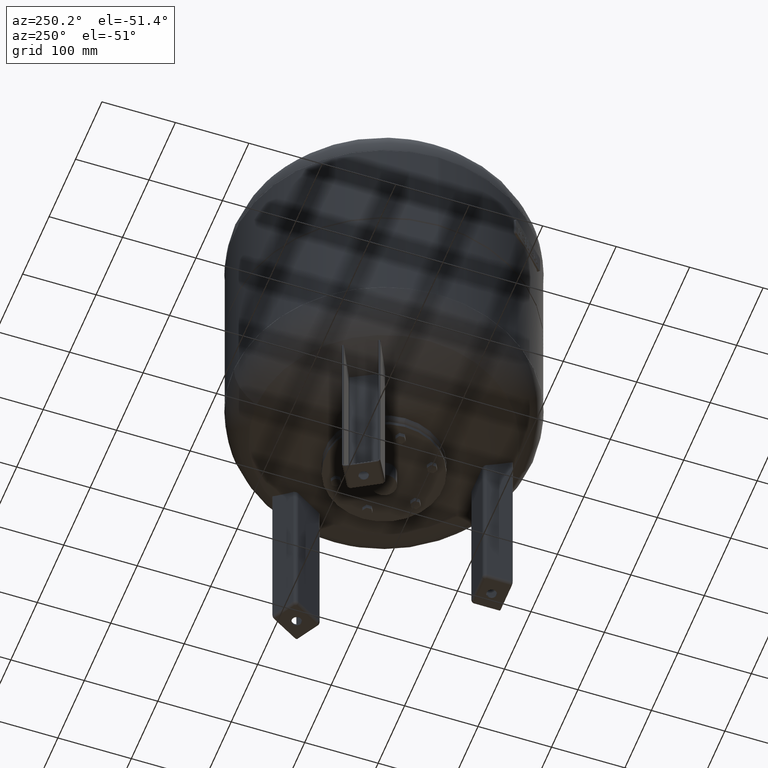
[diagram: clean part render]
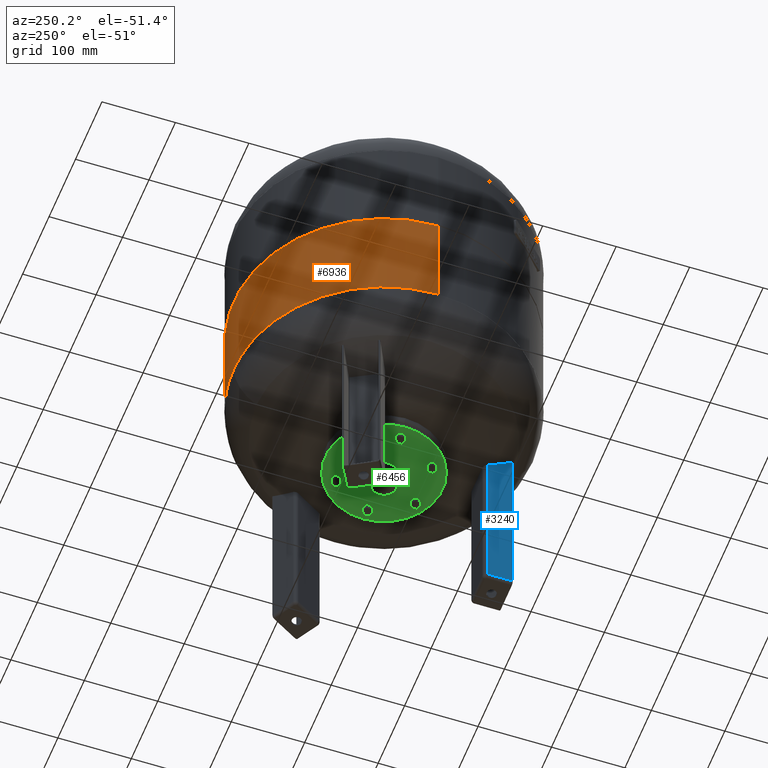
[diagram: same view with three faces highlighted in distinct colors, each labeled with its STEP entity id]
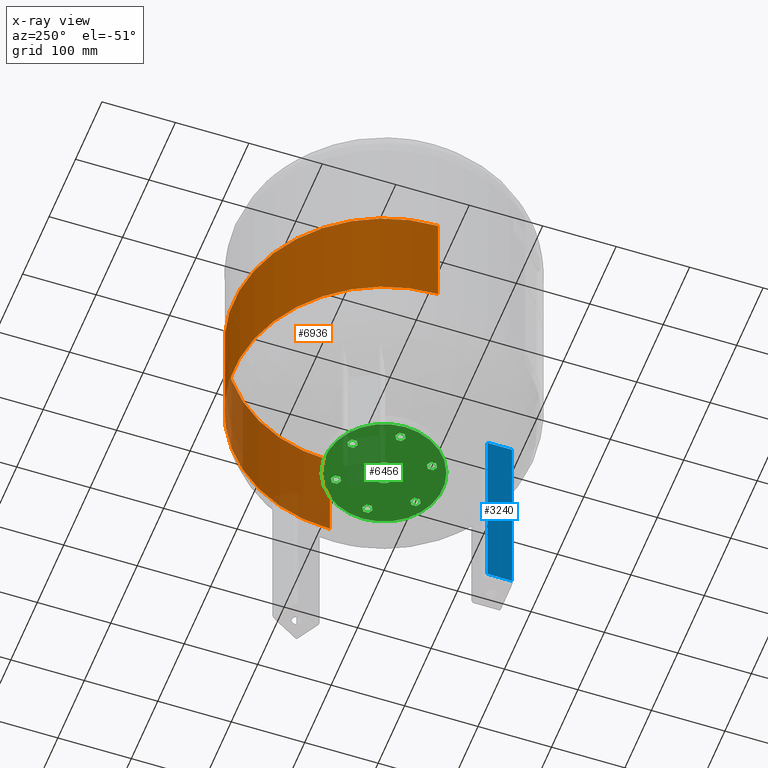
[diagram: x-ray of the same camera — body ghosted, the three highlighted faces saturated]
A machine part, auxiliary view with three faces highlighted in distinct colors.
The next image is the same camera in x-ray (body ghosted, the three faces saturated) — at least one of them is partly hidden behind the body in this view.
Their STEP definitions:

[orange] entity #6936 — the highlighted cylindrical surface (partial cylindrical patch) has radius 204.5 mm, axis along (-0, 0, -1).
#6736=CARTESIAN_POINT('',(-204.500000000000030,-1.647150E-014,312.000000000000060));
#6737=VERTEX_POINT('',#6736);
#6738=CARTESIAN_POINT('',(-204.500000000000000,-2.504403E-014,452.000000000000060));
#6739=VERTEX_POINT('',#6738);
#6740=CARTESIAN_POINT('',(-204.500000000000030,-1.647150E-014,312.000000000000060));
#6741=DIRECTION('',(0.0,0.0,1.0));
#6742=VECTOR('',#6741,140.0);
#6743=LINE('',#6740,#6742);
#6744=EDGE_CURVE('',#6737,#6739,#6743,.T.);
#6746=CARTESIAN_POINT('',(204.500000000000030,8.573355E-015,312.0));
#6747=VERTEX_POINT('',#6746);
#6755=CARTESIAN_POINT('',(204.500000000000030,8.271069E-019,452.0));
#6756=VERTEX_POINT('',#6755);
#6757=CARTESIAN_POINT('',(204.500000000000030,8.573355E-015,312.0));
#6758=DIRECTION('',(0.0,0.0,1.0));
#6759=VECTOR('',#6758,140.0);
#6760=LINE('',#6757,#6759);
#6761=EDGE_CURVE('',#6747,#6756,#6760,.T.);
#6904=CARTESIAN_POINT('',(5.916457E-030,-3.263115E-030,452.000000000000060));
#6905=DIRECTION('',(0.0,0.0,-1.0));
#6906=DIRECTION('',(-1.0,0.0,0.0));
#6907=AXIS2_PLACEMENT_3D('',#6904,#6905,#6906);
#6908=CIRCLE('',#6907,204.500000000000000);
#6909=EDGE_CURVE('',#6739,#6756,#6908,.T.);
#6919=CARTESIAN_POINT('',(-8.572528E-015,4.286264E-015,382.0));
#6920=DIRECTION('',(-1.224647E-016,6.123234E-017,-1.0));
#6921=DIRECTION('',(-1.0,0.0,0.0));
#6922=AXIS2_PLACEMENT_3D('',#6919,#6920,#6921);
#6923=CYLINDRICAL_SURFACE('',#6922,204.500000000000030);
#6924=ORIENTED_EDGE('',*,*,#6744,.T.);
#6925=ORIENTED_EDGE('',*,*,#6909,.T.);
#6926=ORIENTED_EDGE('',*,*,#6761,.F.);
#6927=CARTESIAN_POINT('',(-1.714506E-014,8.572528E-015,312.0));
#6928=DIRECTION('',(0.0,0.0,-1.0));
#6929=DIRECTION('',(-1.0,0.0,0.0));
#6930=AXIS2_PLACEMENT_3D('',#6927,#6928,#6929);
#6931=CIRCLE('',#6930,204.500000000000030);
#6932=EDGE_CURVE('',#6737,#6747,#6931,.T.);
#6933=ORIENTED_EDGE('',*,*,#6932,.F.);
#6934=EDGE_LOOP('',(#6924,#6925,#6926,#6933));
#6935=FACE_OUTER_BOUND('',#6934,.T.);
#6936=ADVANCED_FACE('',(#6935),#6923,.T.);

[blue] entity #3240 — the highlighted planar face has unit normal (-1, 0, 0).
#2448=CARTESIAN_POINT('',(-25.000000000000004,-131.500000000000000,274.0));
#2449=VERTEX_POINT('',#2448);
#2457=CARTESIAN_POINT('',(-25.000000000000004,-165.500000000000000,274.0));
#2458=VERTEX_POINT('',#2457);
#2459=CARTESIAN_POINT('',(-25.000000000000004,-165.500000000000000,274.0));
#2460=DIRECTION('',(0.0,1.0,0.0));
#2461=VECTOR('',#2460,34.0);
#2462=LINE('',#2459,#2461);
#2463=EDGE_CURVE('',#2458,#2449,#2462,.T.);
#2768=CARTESIAN_POINT('',(-25.000000000000004,-165.500000000000000,4.999999999999996));
#2769=VERTEX_POINT('',#2768);
#2770=CARTESIAN_POINT('',(-25.000000000000004,-165.500000000000000,4.999999999999996));
#2771=DIRECTION('',(0.0,0.0,1.0));
#2772=VECTOR('',#2771,269.0);
#2773=LINE('',#2770,#2772);
#2774=EDGE_CURVE('',#2769,#2458,#2773,.T.);
#3115=CARTESIAN_POINT('',(-25.0,-131.500000000000000,4.999999999999996));
#3116=VERTEX_POINT('',#3115);
#3117=CARTESIAN_POINT('',(-25.000000000000004,-165.500000000000000,4.999999999999996));
#3118=DIRECTION('',(0.0,1.0,0.0));
#3119=VECTOR('',#3118,34.0);
#3120=LINE('',#3117,#3119);
#3121=EDGE_CURVE('',#2769,#3116,#3120,.T.);
#3218=CARTESIAN_POINT('',(-25.0,-131.500000000000000,4.999999999999996));
#3219=DIRECTION('',(0.0,0.0,1.0));
#3220=VECTOR('',#3219,269.0);
#3221=LINE('',#3218,#3220);
#3222=EDGE_CURVE('',#3116,#2449,#3221,.T.);
#3229=CARTESIAN_POINT('',(-25.0,-166.500000000000000,-4.592425E-015));
#3230=DIRECTION('',(-1.0,0.0,0.0));
#3231=DIRECTION('',(0.0,-1.0,0.0));
#3232=AXIS2_PLACEMENT_3D('',#3229,#3230,#3231);
#3233=PLANE('',#3232);
#3234=ORIENTED_EDGE('',*,*,#2774,.T.);
#3235=ORIENTED_EDGE('',*,*,#2463,.T.);
#3236=ORIENTED_EDGE('',*,*,#3222,.F.);
#3237=ORIENTED_EDGE('',*,*,#3121,.F.);
#3238=EDGE_LOOP('',(#3234,#3235,#3236,#3237));
#3239=FACE_OUTER_BOUND('',#3238,.T.);
#3240=ADVANCED_FACE('',(#3239),#3233,.T.);

[green] entity #6456 — the highlighted planar face has unit normal (0, 0, 1).
#3382=CARTESIAN_POINT('',(-80.0,3.061617E-015,186.0));
#3383=VERTEX_POINT('',#3382);
#3392=CARTESIAN_POINT('',(80.0,-6.735557E-015,186.0));
#3393=VERTEX_POINT('',#3392);
#3394=CARTESIAN_POINT('',(0.0,3.061617E-015,186.0));
#3395=DIRECTION('',(0.0,0.0,1.0));
#3396=DIRECTION('',(-1.0,0.0,0.0));
#3397=AXIS2_PLACEMENT_3D('',#3394,#3395,#3396);
#3398=CIRCLE('',#3397,80.0);
#3399=EDGE_CURVE('',#3383,#3393,#3398,.T.);
#3426=CARTESIAN_POINT('',(-16.850000000000005,3.061617E-015,186.0));
#3427=VERTEX_POINT('',#3426);
#3443=CARTESIAN_POINT('',(16.850000000000005,9.980871E-016,186.0));
#3444=VERTEX_POINT('',#3443);
#3451=CARTESIAN_POINT('',(0.0,3.061617E-015,186.0));
#3452=DIRECTION('',(0.0,0.0,1.0));
#3453=DIRECTION('',(-1.0,0.0,0.0));
#3454=AXIS2_PLACEMENT_3D('',#3451,#3452,#3453);
#3455=CIRCLE('',#3454,16.850000000000005);
#3456=EDGE_CURVE('',#3427,#3444,#3455,.T.);
#4930=CARTESIAN_POINT('',(-25.249999999999932,-50.662486121389655,186.0));
#4931=VERTEX_POINT('',#4930);
#4932=CARTESIAN_POINT('',(-31.249999999999957,-47.198384506251891,186.0));
#4933=VERTEX_POINT('',#4932);
#4934=CARTESIAN_POINT('',(-25.249999999999932,-50.662486121389655,186.0));
#4935=DIRECTION('',(-0.866025403784439,0.500000000000000,0.0));
#4936=VECTOR('',#4935,6.928203230275535);
#4937=LINE('',#4934,#4936);
#4938=EDGE_CURVE('',#4931,#4933,#4937,.T.);
#4970=CARTESIAN_POINT('',(-25.249999999999932,-57.590689351665176,186.0));
#4971=VERTEX_POINT('',#4970);
#4972=CARTESIAN_POINT('',(-25.249999999999932,-57.590689351665176,186.0));
#4973=DIRECTION('',(0.0,1.0,0.0));
#4974=VECTOR('',#4973,6.928203230275521);
#4975=LINE('',#4972,#4974);
#4976=EDGE_CURVE('',#4971,#4931,#4975,.T.);
#5001=CARTESIAN_POINT('',(-31.249999999999957,-61.054790966802940,186.0));
#5002=VERTEX_POINT('',#5001);
#5003=CARTESIAN_POINT('',(-31.249999999999957,-61.054790966802940,186.0));
#5004=DIRECTION('',(0.866025403784439,0.500000000000000,0.0));
#5005=VECTOR('',#5004,6.928203230275535);
#5006=LINE('',#5003,#5005);
#5007=EDGE_CURVE('',#5002,#4971,#5006,.T.);
#5032=CARTESIAN_POINT('',(-37.249999999999950,-57.590689351665198,186.0));
#5033=VERTEX_POINT('',#5032);
#5034=CARTESIAN_POINT('',(-37.249999999999950,-57.590689351665198,186.0));
#5035=DIRECTION('',(0.866025403784439,-0.499999999999999,0.0));
#5036=VECTOR('',#5035,6.928203230275497);
#5037=LINE('',#5034,#5036);
#5038=EDGE_CURVE('',#5033,#5002,#5037,.T.);
#5063=CARTESIAN_POINT('',(-37.249999999999979,-50.662486121389669,186.0));
#5064=VERTEX_POINT('',#5063);
#5065=CARTESIAN_POINT('',(-31.249999999999957,-47.198384506251891,186.0));
#5066=DIRECTION('',(-0.866025403784438,-0.500000000000001,0.0));
#5067=VECTOR('',#5066,6.928203230275540);
#5068=LINE('',#5065,#5067);
#5069=EDGE_CURVE('',#4933,#5064,#5068,.T.);
#5094=CARTESIAN_POINT('',(-37.249999999999979,-50.662486121389669,186.0));
#5095=DIRECTION('',(0.0,-1.0,0.0));
#5096=VECTOR('',#5095,6.928203230275528);
#5097=LINE('',#5094,#5096);
#5098=EDGE_CURVE('',#5064,#5033,#5097,.T.);
#5158=CARTESIAN_POINT('',(31.250000000000014,-47.198384506251855,186.0));
#5159=VERTEX_POINT('',#5158);
#5160=CARTESIAN_POINT('',(25.250000000000004,-50.662486121389620,186.0));
#5161=VERTEX_POINT('',#5160);
#5162=CARTESIAN_POINT('',(31.250000000000014,-47.198384506251855,186.0));
#5163=DIRECTION('',(-0.866025403784438,-0.500000000000000,0.0));
#5164=VECTOR('',#5163,6.928203230275523);
#5165=LINE('',#5162,#5164);
#5166=EDGE_CURVE('',#5159,#5161,#5165,.T.);
#5198=CARTESIAN_POINT('',(37.250000000000028,-50.662486121389620,186.0));
#5199=VERTEX_POINT('',#5198);
#5200=CARTESIAN_POINT('',(37.250000000000028,-50.662486121389620,186.0));
#5201=DIRECTION('',(-0.866025403784438,0.500000000000000,0.0));
#5202=VECTOR('',#5201,6.928203230275527);
#5203=LINE('',#5200,#5202);
#5204=EDGE_CURVE('',#5199,#5159,#5203,.T.);
#5229=CARTESIAN_POINT('',(37.250000000000028,-57.590689351665141,186.0));
#5230=VERTEX_POINT('',#5229);
#5231=CARTESIAN_POINT('',(37.250000000000028,-57.590689351665141,186.0));
#5232=DIRECTION('',(0.0,1.0,0.0));
#5233=VECTOR('',#5232,6.928203230275521);
#5234=LINE('',#5231,#5233);
#5235=EDGE_CURVE('',#5230,#5199,#5234,.T.);
#5260=CARTESIAN_POINT('',(31.250000000000032,-61.054790966802905,186.0));
#5261=VERTEX_POINT('',#5260);
#5262=CARTESIAN_POINT('',(31.250000000000032,-61.054790966802905,186.0));
#5263=DIRECTION('',(0.866025403784438,0.500000000000001,0.0));
#5264=VECTOR('',#5263,6.928203230275511);
#5265=LINE('',#5262,#5264);
#5266=EDGE_CURVE('',#5261,#5230,#5265,.T.);
#5291=CARTESIAN_POINT('',(25.250000000000007,-57.590689351665141,186.0));
#5292=VERTEX_POINT('',#5291);
#5293=CARTESIAN_POINT('',(25.250000000000004,-50.662486121389620,186.0));
#5294=DIRECTION('',(0.0,-1.0,0.0));
#5295=VECTOR('',#5294,6.928203230275521);
#5296=LINE('',#5293,#5295);
#5297=EDGE_CURVE('',#5161,#5292,#5296,.T.);
#5322=CARTESIAN_POINT('',(25.250000000000007,-57.590689351665141,186.0));
#5323=DIRECTION('',(0.866025403784439,-0.500000000000000,0.0));
#5324=VECTOR('',#5323,6.928203230275535);
#5325=LINE('',#5322,#5324);
#5326=EDGE_CURVE('',#5292,#5261,#5325,.T.);
#5386=CARTESIAN_POINT('',(56.499999999999972,3.464101615137770,186.0));
#5387=VERTEX_POINT('',#5386);
#5388=CARTESIAN_POINT('',(56.499999999999979,-3.464101615137750,186.0));
#5389=VERTEX_POINT('',#5388);
#5390=CARTESIAN_POINT('',(56.499999999999972,3.464101615137770,186.0));
#5391=DIRECTION('',(0.0,-1.0,0.0));
#5392=VECTOR('',#5391,6.928203230275520);
#5393=LINE('',#5390,#5392);
#5394=EDGE_CURVE('',#5387,#5389,#5393,.T.);
#5426=CARTESIAN_POINT('',(62.499999999999993,6.928203230275536,186.0));
#5427=VERTEX_POINT('',#5426);
#5428=CARTESIAN_POINT('',(62.499999999999993,6.928203230275536,186.0));
#5429=DIRECTION('',(-0.866025403784439,-0.500000000000000,0.0));
#5430=VECTOR('',#5429,6.928203230275534);
#5431=LINE('',#5428,#5430);
#5432=EDGE_CURVE('',#5427,#5387,#5431,.T.);
#5457=CARTESIAN_POINT('',(68.500000000000000,3.464101615137766,186.0));
#5458=VERTEX_POINT('',#5457);
#5459=CARTESIAN_POINT('',(68.500000000000000,3.464101615137766,186.0));
#5460=DIRECTION('',(-0.866025403784438,0.500000000000001,0.0));
#5461=VECTOR('',#5460,6.928203230275524);
#5462=LINE('',#5459,#5461);
#5463=EDGE_CURVE('',#5458,#5427,#5462,.T.);
#5488=CARTESIAN_POINT('',(68.500000000000000,-3.464101615137742,186.0));
#5489=VERTEX_POINT('',#5488);
#5490=CARTESIAN_POINT('',(68.500000000000000,-3.464101615137742,186.0));
#5491=DIRECTION('',(0.0,1.0,0.0));
#5492=VECTOR('',#5491,6.928203230275507);
#5493=LINE('',#5490,#5492);
#5494=EDGE_CURVE('',#5489,#5458,#5493,.T.);
#5519=CARTESIAN_POINT('',(62.499999999999993,-6.928203230275513,186.0));
#5520=VERTEX_POINT('',#5519);
#5521=CARTESIAN_POINT('',(56.499999999999979,-3.464101615137750,186.0));
#5522=DIRECTION('',(0.866025403784439,-0.500000000000000,0.0));
#5523=VECTOR('',#5522,6.928203230275526);
#5524=LINE('',#5521,#5523);
#5525=EDGE_CURVE('',#5389,#5520,#5524,.T.);
#5550=CARTESIAN_POINT('',(62.499999999999993,-6.928203230275513,186.0));
#5551=DIRECTION('',(0.866025403784438,0.500000000000001,0.0));
#5552=VECTOR('',#5551,6.928203230275524);
#5553=LINE('',#5550,#5552);
#5554=EDGE_CURVE('',#5520,#5489,#5553,.T.);
#5638=CARTESIAN_POINT('',(25.249999999999968,50.662486121389648,186.0));
#5639=VERTEX_POINT('',#5638);
#5640=CARTESIAN_POINT('',(31.249999999999993,47.198384506251891,186.0));
#5641=VERTEX_POINT('',#5640);
#5642=CARTESIAN_POINT('',(25.249999999999968,50.662486121389648,186.0));
#5643=DIRECTION('',(0.866025403784439,-0.499999999999999,0.0));
#5644=VECTOR('',#5643,6.928203230275532);
#5645=LINE('',#5642,#5644);
#5646=EDGE_CURVE('',#5639,#5641,#5645,.T.);
#5678=CARTESIAN_POINT('',(25.249999999999964,57.590689351665183,186.0));
#5679=VERTEX_POINT('',#5678);
#5680=CARTESIAN_POINT('',(25.249999999999964,57.590689351665183,186.0));
#5681=DIRECTION('',(0.0,-1.0,0.0));
#5682=VECTOR('',#5681,6.928203230275535);
#5683=LINE('',#5680,#5682);
#5684=EDGE_CURVE('',#5679,#5639,#5683,.T.);
#5709=CARTESIAN_POINT('',(31.249999999999993,61.054790966802933,186.0));
#5710=VERTEX_POINT('',#5709);
#5711=CARTESIAN_POINT('',(31.249999999999993,61.054790966802933,186.0));
#5712=DIRECTION('',(-0.866025403784440,-0.499999999999998,0.0));
#5713=VECTOR('',#5712,6.928203230275532);
#5714=LINE('',#5711,#5713);
#5715=EDGE_CURVE('',#5710,#5679,#5714,.T.);
#5740=CARTESIAN_POINT('',(37.249999999999986,57.590689351665191,186.0));
#5741=VERTEX_POINT('',#5740);
#5742=CARTESIAN_POINT('',(37.249999999999986,57.590689351665191,186.0));
#5743=DIRECTION('',(-0.866025403784439,0.499999999999999,0.0));
#5744=VECTOR('',#5743,6.928203230275497);
#5745=LINE('',#5742,#5744);
#5746=EDGE_CURVE('',#5741,#5710,#5745,.T.);
#5771=CARTESIAN_POINT('',(37.250000000000000,50.662486121389655,186.0));
#5772=VERTEX_POINT('',#5771);
#5773=CARTESIAN_POINT('',(31.249999999999993,47.198384506251891,186.0));
#5774=DIRECTION('',(0.866025403784438,0.500000000000001,0.0));
#5775=VECTOR('',#5774,6.928203230275520);
#5776=LINE('',#5773,#5775);
#5777=EDGE_CURVE('',#5641,#5772,#5776,.T.);
#5802=CARTESIAN_POINT('',(37.250000000000000,50.662486121389655,186.0));
#5803=DIRECTION('',(0.0,1.0,0.0));
#5804=VECTOR('',#5803,6.928203230275535);
#5805=LINE('',#5802,#5804);
#5806=EDGE_CURVE('',#5772,#5741,#5805,.T.);
#5890=CARTESIAN_POINT('',(-31.249999999999996,47.198384506251877,186.0));
#5891=VERTEX_POINT('',#5890);
#5892=CARTESIAN_POINT('',(-25.249999999999982,50.662486121389648,186.0));
#5893=VERTEX_POINT('',#5892);
#5894=CARTESIAN_POINT('',(-31.249999999999996,47.198384506251877,186.0));
#5895=DIRECTION('',(0.866025403784438,0.500000000000001,0.0));
#5896=VECTOR('',#5895,6.928203230275530);
#5897=LINE('',#5894,#5896);
#5898=EDGE_CURVE('',#5891,#5893,#5897,.T.);
#5930=CARTESIAN_POINT('',(-37.250000000000014,50.662486121389641,186.0));
#5931=VERTEX_POINT('',#5930);
#5932=CARTESIAN_POINT('',(-37.250000000000014,50.662486121389641,186.0));
#5933=DIRECTION('',(0.866025403784439,-0.500000000000000,0.0));
#5934=VECTOR('',#5933,6.928203230275529);
#5935=LINE('',#5932,#5934);
#5936=EDGE_CURVE('',#5931,#5891,#5935,.T.);
#5961=CARTESIAN_POINT('',(-37.250000000000007,57.590689351665176,186.0));
#5962=VERTEX_POINT('',#5961);
#5963=CARTESIAN_POINT('',(-37.250000000000007,57.590689351665176,186.0));
#5964=DIRECTION('',(0.0,-1.0,0.0));
#5965=VECTOR('',#5964,6.928203230275535);
#5966=LINE('',#5963,#5965);
#5967=EDGE_CURVE('',#5962,#5931,#5966,.T.);
#5992=CARTESIAN_POINT('',(-31.250000000000007,61.054790966802926,186.0));
#5993=VERTEX_POINT('',#5992);
#5994=CARTESIAN_POINT('',(-31.250000000000007,61.054790966802926,186.0));
#5995=DIRECTION('',(-0.866025403784439,-0.500000000000000,0.0));
#5996=VECTOR('',#5995,6.928203230275507);
#5997=LINE('',#5994,#5996);
#5998=EDGE_CURVE('',#5993,#5962,#5997,.T.);
#6023=CARTESIAN_POINT('',(-25.249999999999986,57.590689351665169,186.0));
#6024=VERTEX_POINT('',#6023);
#6025=CARTESIAN_POINT('',(-25.249999999999982,50.662486121389648,186.0));
#6026=DIRECTION('',(0.0,1.0,0.0));
#6027=VECTOR('',#6026,6.928203230275521);
#6028=LINE('',#6025,#6027);
#6029=EDGE_CURVE('',#5893,#6024,#6028,.T.);
#6054=CARTESIAN_POINT('',(-25.249999999999986,57.590689351665169,186.0));
#6055=DIRECTION('',(-0.866025403784439,0.499999999999999,0.0));
#6056=VECTOR('',#6055,6.928203230275528);
#6057=LINE('',#6054,#6056);
#6058=EDGE_CURVE('',#6024,#5993,#6057,.T.);
#6142=CARTESIAN_POINT('',(-56.499999999999972,-3.464101615137759,186.0));
#6143=VERTEX_POINT('',#6142);
#6144=CARTESIAN_POINT('',(-56.499999999999972,3.464101615137766,186.0));
#6145=VERTEX_POINT('',#6144);
#6146=CARTESIAN_POINT('',(-56.499999999999972,-3.464101615137759,186.0));
#6147=DIRECTION('',(0.0,1.0,0.0));
#6148=VECTOR('',#6147,6.928203230275525);
#6149=LINE('',#6146,#6148);
#6150=EDGE_CURVE('',#6143,#6145,#6149,.T.);
#6182=CARTESIAN_POINT('',(-62.499999999999986,-6.928203230275522,186.0));
#6183=VERTEX_POINT('',#6182);
#6184=CARTESIAN_POINT('',(-62.499999999999986,-6.928203230275522,186.0));
#6185=DIRECTION('',(0.866025403784439,0.500000000000000,0.0));
#6186=VECTOR('',#6185,6.928203230275526);
#6187=LINE('',#6184,#6186);
#6188=EDGE_CURVE('',#6183,#6143,#6187,.T.);
#6213=CARTESIAN_POINT('',(-68.500000000000000,-3.464101615137751,186.0));
#6214=VERTEX_POINT('',#6213);
#6215=CARTESIAN_POINT('',(-68.500000000000000,-3.464101615137751,186.0));
#6216=DIRECTION('',(0.866025403784438,-0.500000000000001,0.0));
#6217=VECTOR('',#6216,6.928203230275530);
#6218=LINE('',#6215,#6217);
#6219=EDGE_CURVE('',#6214,#6183,#6218,.T.);
#6244=CARTESIAN_POINT('',(-68.500000000000000,3.464101615137758,186.0));
#6245=VERTEX_POINT('',#6244);
#6246=CARTESIAN_POINT('',(-68.500000000000000,3.464101615137758,186.0));
#6247=DIRECTION('',(0.0,-1.0,0.0));
#6248=VECTOR('',#6247,6.928203230275509);
#6249=LINE('',#6246,#6248);
#6250=EDGE_CURVE('',#6245,#6214,#6249,.T.);
#6275=CARTESIAN_POINT('',(-62.499999999999986,6.928203230275527,186.0));
#6276=VERTEX_POINT('',#6275);
#6277=CARTESIAN_POINT('',(-56.499999999999972,3.464101615137766,186.0));
#6278=DIRECTION('',(-0.866025403784439,0.500000000000000,0.0));
#6279=VECTOR('',#6278,6.928203230275525);
#6280=LINE('',#6277,#6279);
#6281=EDGE_CURVE('',#6145,#6276,#6280,.T.);
#6306=CARTESIAN_POINT('',(-62.499999999999986,6.928203230275527,186.0));
#6307=DIRECTION('',(-0.866025403784438,-0.500000000000001,0.0));
#6308=VECTOR('',#6307,6.928203230275529);
#6309=LINE('',#6306,#6308);
#6310=EDGE_CURVE('',#6276,#6245,#6309,.T.);
#6343=CARTESIAN_POINT('',(0.0,3.061617E-015,186.0));
#6344=DIRECTION('',(0.0,0.0,1.0));
#6345=DIRECTION('',(-1.0,0.0,0.0));
#6346=AXIS2_PLACEMENT_3D('',#6343,#6344,#6345);
#6347=CIRCLE('',#6346,16.850000000000005);
#6348=EDGE_CURVE('',#3444,#3427,#6347,.T.);
#6385=CARTESIAN_POINT('',(0.0,3.061617E-015,186.0));
#6386=DIRECTION('',(0.0,0.0,1.0));
#6387=DIRECTION('',(-1.0,0.0,0.0));
#6388=AXIS2_PLACEMENT_3D('',#6385,#6386,#6387);
#6389=CIRCLE('',#6388,80.0);
#6390=EDGE_CURVE('',#3393,#3383,#6389,.T.);
#6395=CARTESIAN_POINT('',(0.0,3.061617E-015,186.0));
#6396=DIRECTION('',(0.0,0.0,1.0));
#6397=DIRECTION('',(-1.0,0.0,0.0));
#6398=AXIS2_PLACEMENT_3D('',#6395,#6396,#6397);
#6399=PLANE('',#6398);
#6400=ORIENTED_EDGE('',*,*,#6390,.F.);
#6401=ORIENTED_EDGE('',*,*,#3399,.F.);
#6402=EDGE_LOOP('',(#6400,#6401));
#6403=FACE_OUTER_BOUND('',#6402,.T.);
#6404=ORIENTED_EDGE('',*,*,#4938,.T.);
#6405=ORIENTED_EDGE('',*,*,#5069,.T.);
#6406=ORIENTED_EDGE('',*,*,#5098,.T.);
#6407=ORIENTED_EDGE('',*,*,#5038,.T.);
#6408=ORIENTED_EDGE('',*,*,#5007,.T.);
#6409=ORIENTED_EDGE('',*,*,#4976,.T.);
#6410=EDGE_LOOP('',(#6404,#6405,#6406,#6407,#6408,#6409));
#6411=FACE_BOUND('',#6410,.T.);
#6412=ORIENTED_EDGE('',*,*,#5166,.T.);
#6413=ORIENTED_EDGE('',*,*,#5297,.T.);
#6414=ORIENTED_EDGE('',*,*,#5326,.T.);
#6415=ORIENTED_EDGE('',*,*,#5266,.T.);
#6416=ORIENTED_EDGE('',*,*,#5235,.T.);
#6417=ORIENTED_EDGE('',*,*,#5204,.T.);
#6418=EDGE_LOOP('',(#6412,#6413,#6414,#6415,#6416,#6417));
#6419=FACE_BOUND('',#6418,.T.);
#6420=ORIENTED_EDGE('',*,*,#5394,.T.);
#6421=ORIENTED_EDGE('',*,*,#5525,.T.);
#6422=ORIENTED_EDGE('',*,*,#5554,.T.);
#6423=ORIENTED_EDGE('',*,*,#5494,.T.);
#6424=ORIENTED_EDGE('',*,*,#5463,.T.);
#6425=ORIENTED_EDGE('',*,*,#5432,.T.);
#6426=EDGE_LOOP('',(#6420,#6421,#6422,#6423,#6424,#6425));
#6427=FACE_BOUND('',#6426,.T.);
#6428=ORIENTED_EDGE('',*,*,#5646,.T.);
#6429=ORIENTED_EDGE('',*,*,#5777,.T.);
#6430=ORIENTED_EDGE('',*,*,#5806,.T.);
#6431=ORIENTED_EDGE('',*,*,#5746,.T.);
#6432=ORIENTED_EDGE('',*,*,#5715,.T.);
#6433=ORIENTED_EDGE('',*,*,#5684,.T.);
#6434=EDGE_LOOP('',(#6428,#6429,#6430,#6431,#6432,#6433));
#6435=FACE_BOUND('',#6434,.T.);
#6436=ORIENTED_EDGE('',*,*,#5898,.T.);
#6437=ORIENTED_EDGE('',*,*,#6029,.T.);
#6438=ORIENTED_EDGE('',*,*,#6058,.T.);
#6439=ORIENTED_EDGE('',*,*,#5998,.T.);
#6440=ORIENTED_EDGE('',*,*,#5967,.T.);
#6441=ORIENTED_EDGE('',*,*,#5936,.T.);
#6442=EDGE_LOOP('',(#6436,#6437,#6438,#6439,#6440,#6441));
#6443=FACE_BOUND('',#6442,.T.);
#6444=ORIENTED_EDGE('',*,*,#6150,.T.);
#6445=ORIENTED_EDGE('',*,*,#6281,.T.);
#6446=ORIENTED_EDGE('',*,*,#6310,.T.);
#6447=ORIENTED_EDGE('',*,*,#6250,.T.);
#6448=ORIENTED_EDGE('',*,*,#6219,.T.);
#6449=ORIENTED_EDGE('',*,*,#6188,.T.);
#6450=EDGE_LOOP('',(#6444,#6445,#6446,#6447,#6448,#6449));
#6451=FACE_BOUND('',#6450,.T.);
#6452=ORIENTED_EDGE('',*,*,#6348,.T.);
#6453=ORIENTED_EDGE('',*,*,#3456,.T.);
#6454=EDGE_LOOP('',(#6452,#6453));
#6455=FACE_BOUND('',#6454,.T.);
#6456=ADVANCED_FACE('',(#6403,#6411,#6419,#6427,#6435,#6443,#6451,#6455),#6399,.F.);